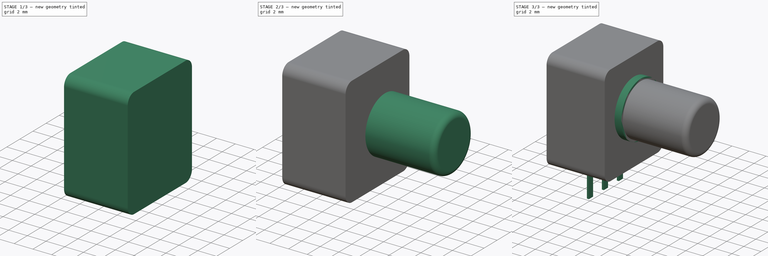
[diagram: build sequence overview — one tinted view per stage of 3, left to right]
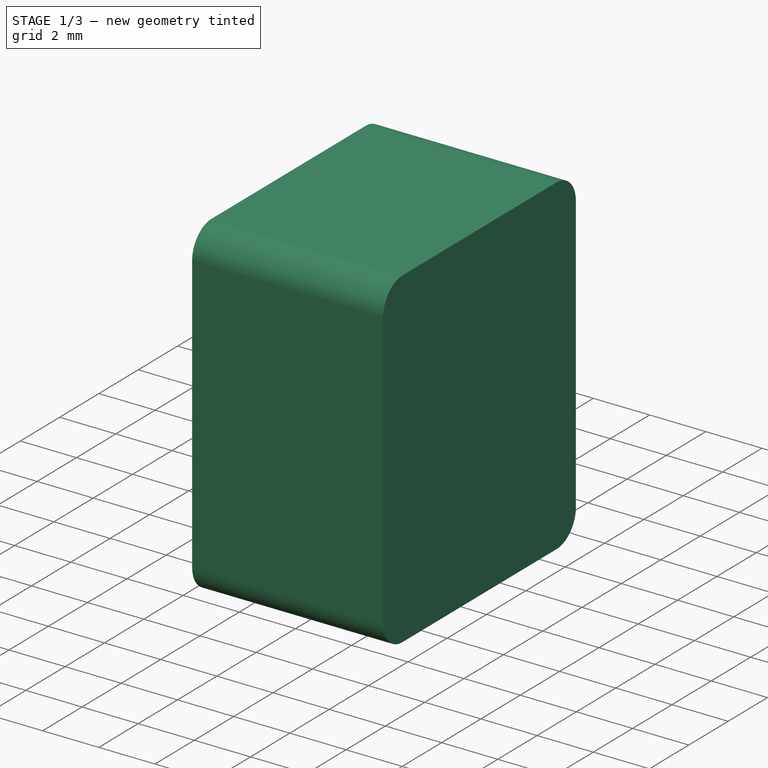
[diagram: stage 1 of 3 — iso view after this stage's code; geometry added in this stage tinted green]
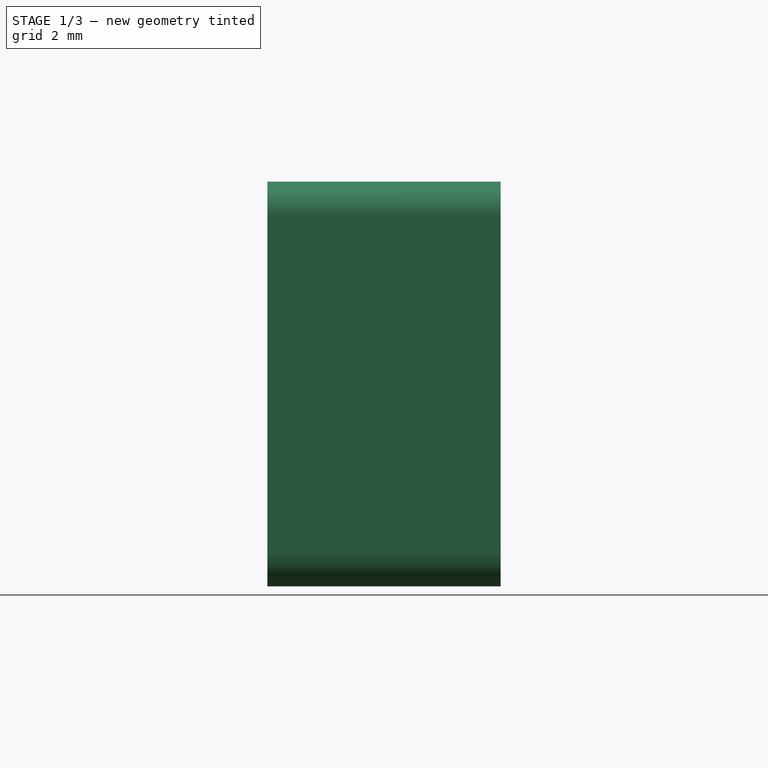
[diagram: stage 1 of 3 — front view after this stage's code; geometry added in this stage tinted green]
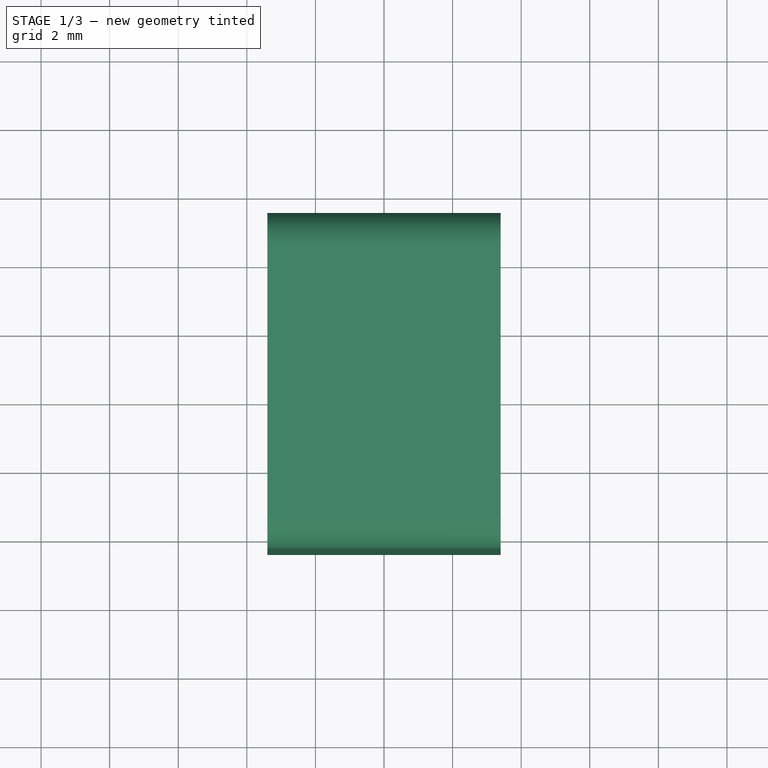
[diagram: stage 1 of 3 — top view after this stage's code; geometry added in this stage tinted green]
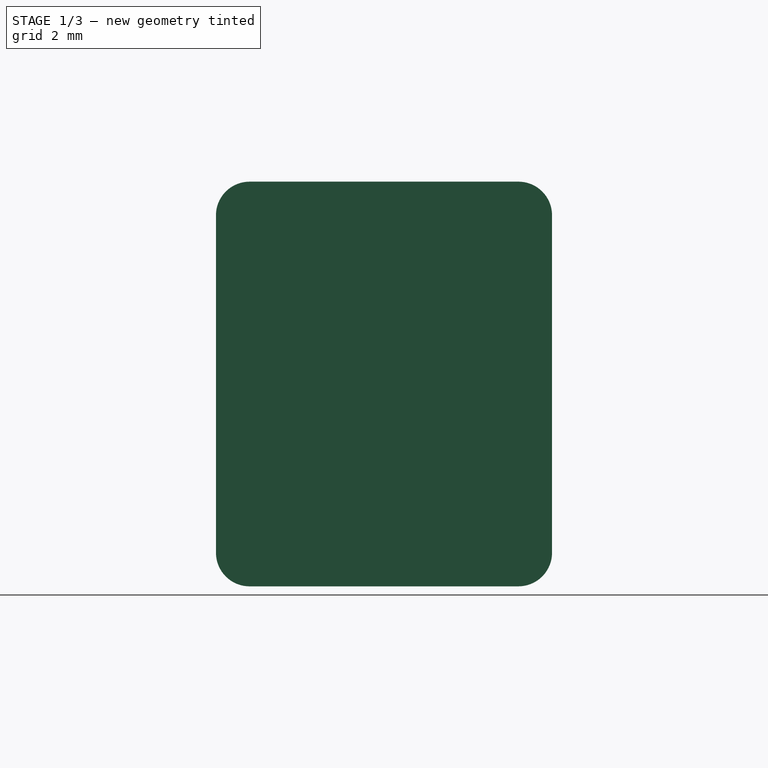
[diagram: stage 1 of 3 — right view after this stage's code; geometry added in this stage tinted green]
FCSTD DOCUMENT  (FreeCAD 0.16R6703 (Git))
Label: Potentiometer_Alps_RK09K_Vertical
License: All rights reserved
LicenseURL: http://en.wikipedia.org/wiki/All_rights_reserved
objects: Sketcher::SketchObject×4, PartDesign::Pad×4, PartDesign::Fillet×2, Spreadsheet::Sheet×1
note: 14 computed .brp shape members not serialized (recipe doc carries the construction recipe); baked Part::Feature solids carry a one-line shape summary decoded from their .brp

FEATURE [Spreadsheet::Sheet] Spreadsheet
  cells = A1=var lbody_fab = ; B1(lbody_fab)=-3.4; A2=var tbody_fab = ; B2(tbody_fab)=-7.4; A3=var wbody_fab = ; B3(wbody_fab)=6.8; A4=var hbody_fab = ; B4(hbody_fab)=9.800000000000001; A5=var lscrew_fab = ; B5(lscrew_fab)=3.4; A6=var tscrew_fab = ; B6(tscrew_fab)=-5.75; A7=var wscrew_fab = ; B7(wscrew_fab)=0.8; A8=var hscrew_fab = ; B8(hscrew_fab)=6.5; A9=var lshaft_fab = ; B9(lshaft_fab)=4.2; A10=var tshaft_fab = ; B10(tshaft_fab)=-5.5; A11=var wshaft_fab = ; B11(wshaft_fab)=7.4; A12=var hshaft_fab = ; B12(hshaft_fab)=6; A13=var rmx = ; B13(rmx)=2.5; A14=var rmy = ; B14(rmy)=2.5; A15=var padx = ; B15(padx)=0; A16=var pady = ; B16(pady)=5; A17=var d_wire = ; B17(d_wire)=0.7; A18=var height = ; B18(height)=12; A19=var screwzpos = ; B19(screwzpos)=6.5; A20=var mhpadx = ; B20(mhpadx)=-3.3; A21=var mhpady = ; B21(mhpady)=-2.5; A22=var mh_rmx = ; B22(mh_rmx)=0; A23=var mh_rmy = ; B23(mh_rmy)=10; A24=var offsetx = ; B24(offsetx)=0; A25=var offsety = ; B25(offsety)=-5
FEATURE [Sketcher::SketchObject] Sketch
  Placement = pos=(-3.4,0,0) rot=(0.57735,0.57735,0.57735;2.0944rad)
  expr: Constraints[10] = Spreadsheet.hbody_fab
  expr: Constraints[9] = Spreadsheet.height
  expr: Placement.Base.x = Spreadsheet.lbody_fab
  expr: Constraints[8] = Spreadsheet.tbody_fab
  sketch-geometry (4):
    g0: LineSegment StartX=7.4 StartY=12 StartZ=0 EndX=-2.4 EndY=12 EndZ=0
    g1: LineSegment StartX=-2.4 StartY=12 StartZ=0 EndX=-2.4 EndY=0.2 EndZ=0
    g2: LineSegment StartX=-2.4 StartY=0.2 StartZ=0 EndX=7.4 EndY=0.2 EndZ=0
    g3: LineSegment StartX=7.4 StartY=0.2 StartZ=0 EndX=7.4 EndY=12 EndZ=0
  constraints (12):
    c: Coincident(g0,g1)
    c: Coincident(g1,g2)
    c: Coincident(g2,g3)
    c: Coincident(g3,g0)
    c: Horizontal(g0)
    c: Horizontal(g2)
    c: Vertical(g1)
    c: Vertical(g3)
    c: DistanceX(g2,g-1) = -7.4
    c: DistanceY(g-1,g0) = 12
    c: DistanceX(g0,g0) = 9.8
    c: DistanceY(g-1,g1) = 0.2
FEATURE [PartDesign::Pad] Pad
  Length = 6.8
  Length2 = 100
  Placement = pos=(-3.4,0,0) rot=(0.57735,0.57735,0.57735;2.0944rad)
  Sketch = -> Sketch
  Type = 0
  expr: Length = abs(Spreadsheet.wbody_fab)
FEATURE [PartDesign::Fillet] Fillet001
  Base = -> Pad [Edge2,Edge1,Edge5,Edge8]
  Placement = pos=(-3.4,0,0) rot=(0.57735,0.57735,0.57735;2.0944rad)
  Radius = 0.98
  expr: Radius = Spreadsheet.hbody_fab * 0.1
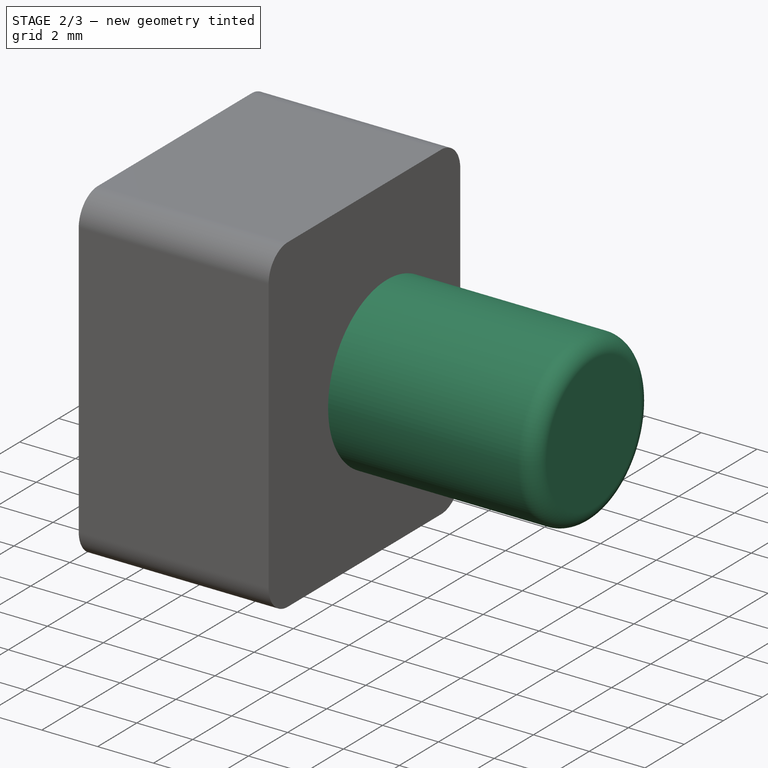
[diagram: stage 2 of 3 — iso view after this stage's code; geometry added in this stage tinted green]
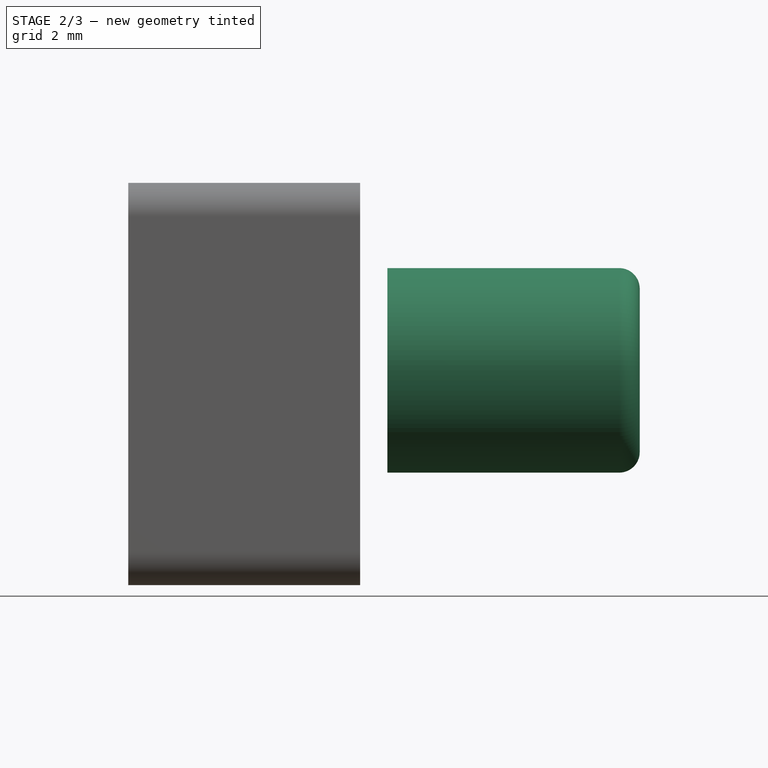
[diagram: stage 2 of 3 — front view after this stage's code; geometry added in this stage tinted green]
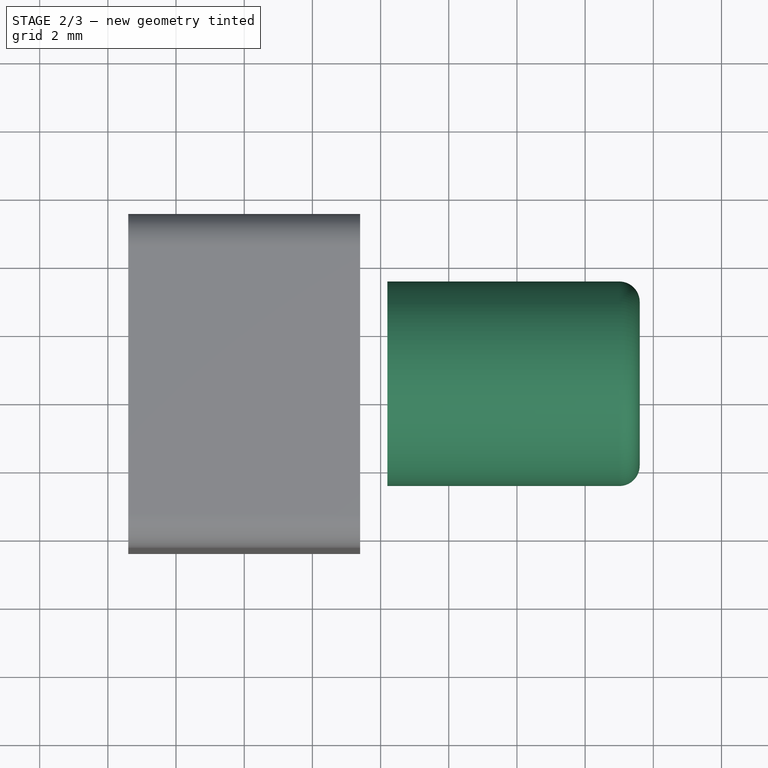
[diagram: stage 2 of 3 — top view after this stage's code; geometry added in this stage tinted green]
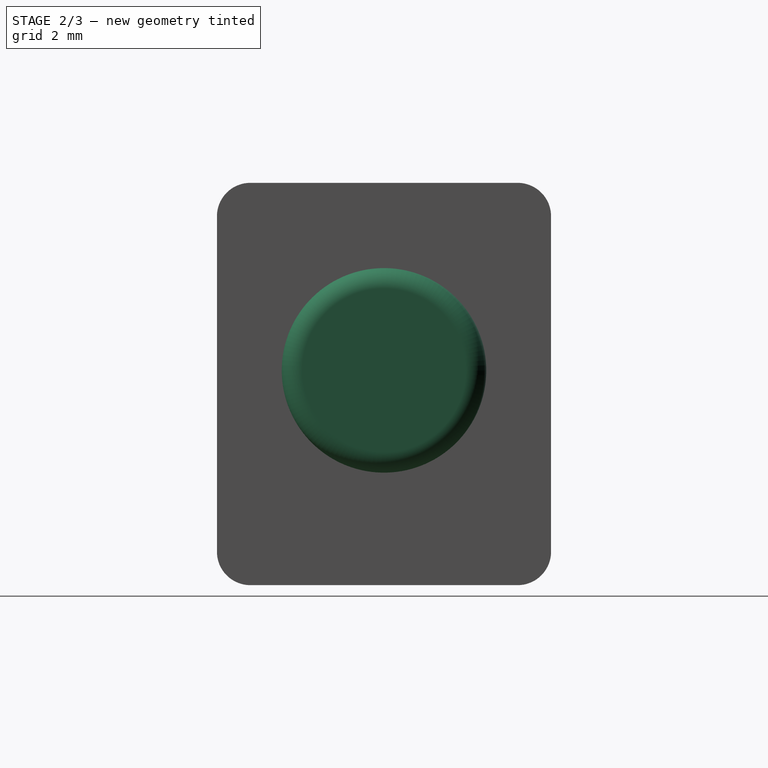
[diagram: stage 2 of 3 — right view after this stage's code; geometry added in this stage tinted green]
FEATURE [Sketcher::SketchObject] Sketch004
  Placement = pos=(4.2,0,0) rot=(0.57735,0.57735,0.57735;2.0944rad)
  expr: Placement.Base.x = Spreadsheet.lshaft_fab
  expr: Constraints[1] = Spreadsheet.screwzpos
  expr: Constraints[0] = Spreadsheet.hshaft_fab / 2
  expr: Constraints[2] = Spreadsheet.tbody_fab + Spreadsheet.hbody_fab / 2
  sketch-geometry (1):
    g0: Circle CenterX=2.5 CenterY=6.5 CenterZ=0 NormalX=0 NormalY=0 NormalZ=1 Radius=3
  constraints (3):
    c: Radius(g0) = 3
    c: DistanceY(g-1,g0) = 6.5
    c: DistanceX(g0,g-1) = -2.5
FEATURE [PartDesign::Pad] Pad003
  Length = 7.4
  Length2 = 100
  Placement = pos=(4.2,0,0) rot=(0.57735,0.57735,0.57735;2.0944rad)
  Sketch = -> Sketch004
  Type = 0
  expr: Length = Spreadsheet.wshaft_fab
FEATURE [PartDesign::Fillet] Fillet
  Base = -> Pad003 [Edge3]
  Placement = pos=(4.2,0,0) rot=(0.57735,0.57735,0.57735;2.0944rad)
  Radius = 0.6
  expr: Radius = Spreadsheet.hshaft_fab * 0.1
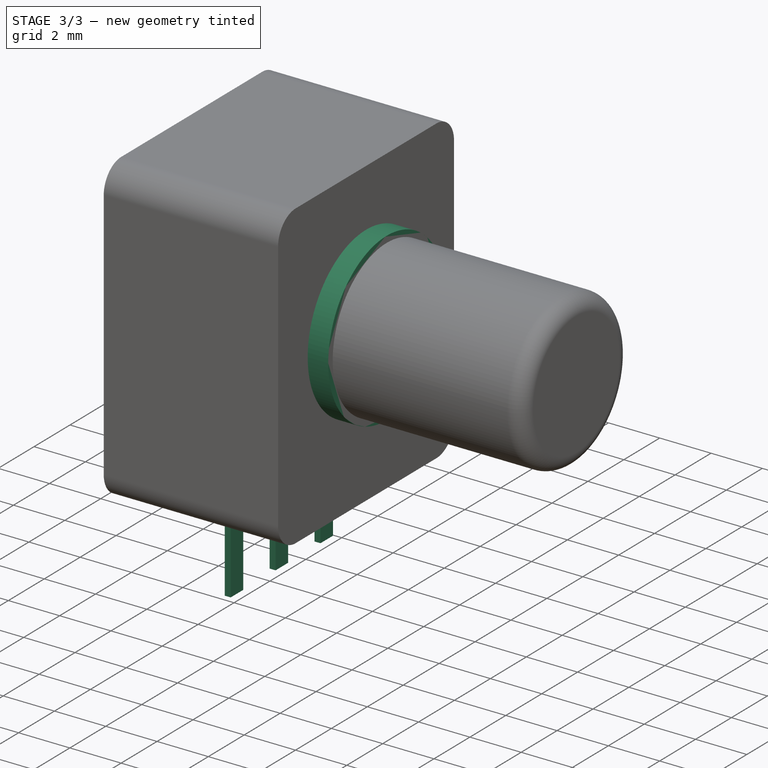
[diagram: stage 3 of 3 — iso view after this stage's code; geometry added in this stage tinted green]
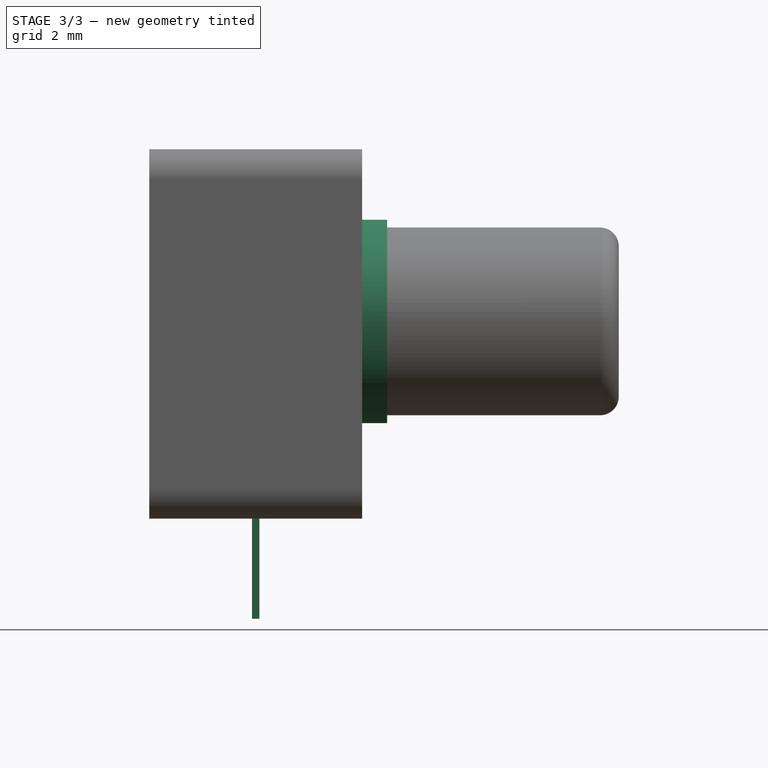
[diagram: stage 3 of 3 — front view after this stage's code; geometry added in this stage tinted green]
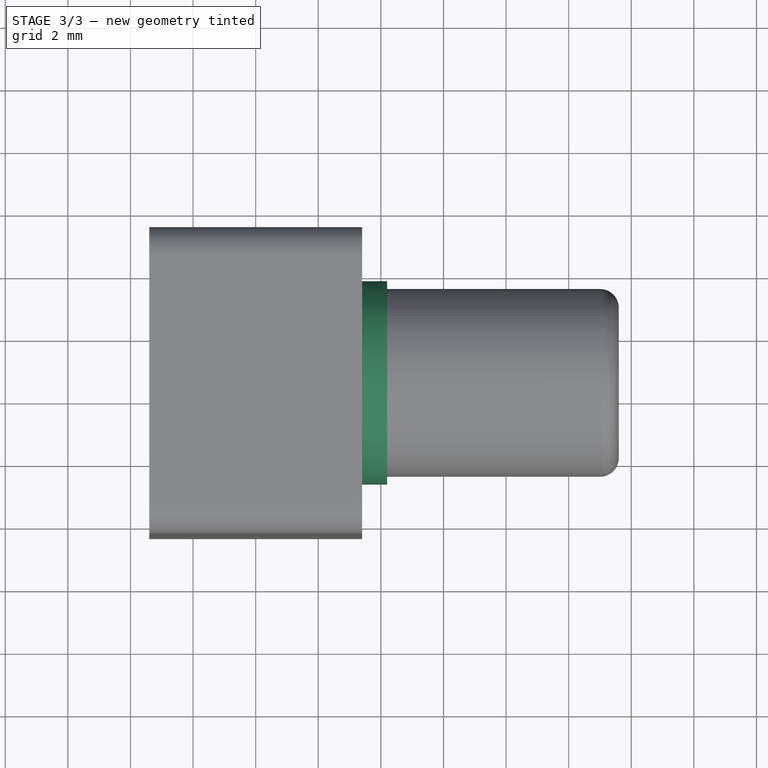
[diagram: stage 3 of 3 — top view after this stage's code; geometry added in this stage tinted green]
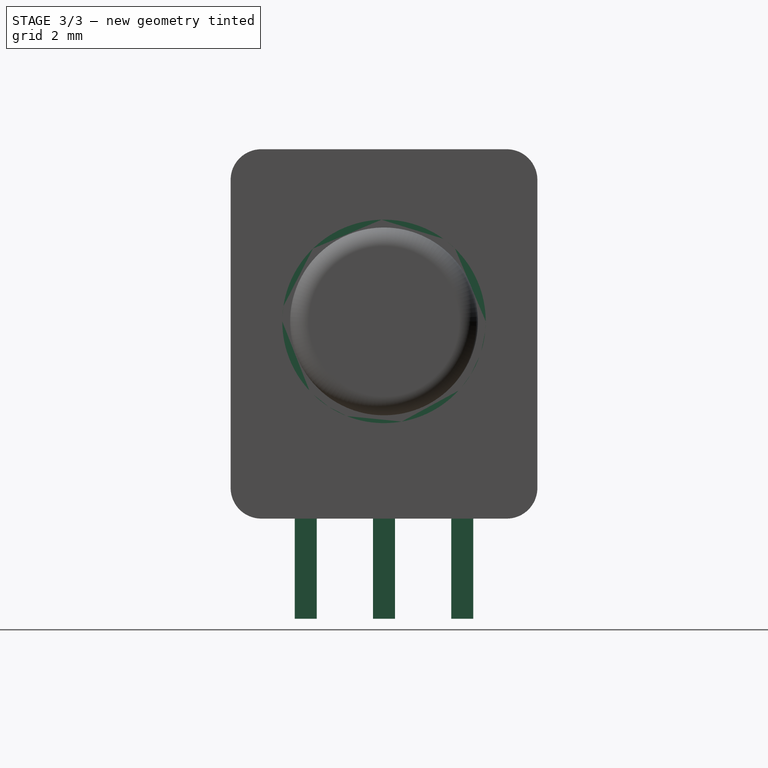
[diagram: stage 3 of 3 — right view after this stage's code; geometry added in this stage tinted green]
FEATURE [Sketcher::SketchObject] Sketch001
  Placement = pos=(4.2,0,0) rot=(0.57735,0.57735,0.57735;2.0944rad)
  expr: Placement.Base.x = Spreadsheet.lshaft_fab
  expr: Constraints[1] = Spreadsheet.screwzpos
  expr: Constraints[0] = Spreadsheet.hscrew_fab / 2
  expr: Constraints[2] = Spreadsheet.tbody_fab + Spreadsheet.hbody_fab / 2
  sketch-geometry (1):
    g0: Circle CenterX=2.5 CenterY=6.5 CenterZ=0 NormalX=0 NormalY=0 NormalZ=1 Radius=3.25
  constraints (3):
    c: Radius(g0) = 3.25
    c: DistanceY(g-1,g0) = 6.5
    c: DistanceX(g0,g-1) = -2.5
FEATURE [PartDesign::Pad] Pad001
  Length = 0.8
  Length2 = 100
  Placement = pos=(4.2,0,0) rot=(0.57735,0.57735,0.57735;2.0944rad)
  Reversed = true
  Sketch = -> Sketch001
  Type = 0
  expr: Length = Spreadsheet.wscrew_fab
FEATURE [Sketcher::SketchObject] Sketch003
  Placement = pos=(0,0,0) rot=(0,0,1;3.14159rad)
  expr: Constraints[23] = Spreadsheet.rmy
  expr: Constraints[22] = Spreadsheet.d_wire / 3
  expr: Constraints[35] = Spreadsheet.rmy * 2
  expr: Constraints[36] = Spreadsheet.rmy * 2
  expr: Constraints[24] = Spreadsheet.rmy
  expr: Constraints[8] = Spreadsheet.d_wire / 3
  expr: Constraints[11] = Spreadsheet.d_wire / 2
  expr: Constraints[10] = Spreadsheet.d_wire / 6
  expr: Constraints[9] = Spreadsheet.d_wire
  sketch-geometry (13):
    g0: LineSegment StartX=-0.116667 StartY=0.35 StartZ=0 EndX=0.116667 EndY=0.35 EndZ=0
    g1: LineSegment StartX=0.116667 StartY=0.35 StartZ=0 EndX=0.116667 EndY=-0.35 EndZ=0
    g2: LineSegment StartX=0.116667 StartY=-0.35 StartZ=0 EndX=-0.116667 EndY=-0.35 EndZ=0
    g3: LineSegment StartX=-0.116667 StartY=-0.35 StartZ=0 EndX=-0.116667 EndY=0.35 EndZ=0
    g4: GeomPoint [constr] X=0 Y=0 Z=0
    g5: LineSegment StartX=-0.116667 StartY=-2.15 StartZ=0 EndX=0.116667 EndY=-2.15 EndZ=0
    g6: LineSegment StartX=0.116667 StartY=-2.15 StartZ=0 EndX=0.116667 EndY=-2.85 EndZ=0
    g7: LineSegment StartX=0.116667 StartY=-2.85 StartZ=0 EndX=-0.116667 EndY=-2.85 EndZ=0
    g8: LineSegment StartX=-0.116667 StartY=-2.85 StartZ=0 EndX=-0.116667 EndY=-2.15 EndZ=0
    g9: LineSegment StartX=-0.116667 StartY=-4.65 StartZ=0 EndX=0.116667 EndY=-4.65 EndZ=0
    g10: LineSegment StartX=0.116667 StartY=-4.65 StartZ=0 EndX=0.116667 EndY=-5.35 EndZ=0
    g11: LineSegment StartX=0.116667 StartY=-5.35 StartZ=0 EndX=-0.116667 EndY=-5.35 EndZ=0
    g12: LineSegment StartX=-0.116667 StartY=-5.35 StartZ=0 EndX=-0.116667 EndY=-4.65 EndZ=0
  constraints (37):
    c: Coincident(g0,g1)
    c: Coincident(g1,g2)
    c: Coincident(g2,g3)
    c: Coincident(g3,g0)
    c: Horizontal(g0)
    c: Horizontal(g2)
    c: Vertical(g1)
    c: Vertical(g3)
    c: DistanceX(g0,g0) = 0.233333
    c: DistanceY(g3,g3) = 0.7
    c: DistanceX(g0,g4) = 0.116667
    c: DistanceY(g2,g4) = 0.35
    c: Coincident(g5,g6)
    c: Coincident(g6,g7)
    c: Coincident(g7,g8)
    c: Coincident(g8,g5)
    c: Horizontal(g5)
    c: Horizontal(g7)
    c: Vertical(g6)
    c: Vertical(g8)
    c: Coincident(g4,g-1)
    c: DistanceX(g2,g5) = 0
    c: DistanceX(g2,g5) = 0.233333
    c: DistanceY(g5,g0) = 2.5
    c: DistanceY(g7,g1) = 2.5
    c: Coincident(g9,g10)
    c: Coincident(g10,g11)
    c: Coincident(g11,g12)
    c: Coincident(g12,g9)
    c: Horizontal(g9)
    c: Horizontal(g11)
    c: Vertical(g10)
    c: Vertical(g12)
    c: DistanceX(g9,g2) = 0
    c: DistanceX(g1,g9) = 0
    c: DistanceY(g9,g0) = 5
    c: DistanceY(g11,g2) = 5
FEATURE [PartDesign::Pad] Pad002
  Length = 9
  Length2 = 3
  Placement = pos=(0,0,0) rot=(0,0,1;3.14159rad)
  Sketch = -> Sketch003
  Type = 4
  expr: Length = Spreadsheet.height * 0.75
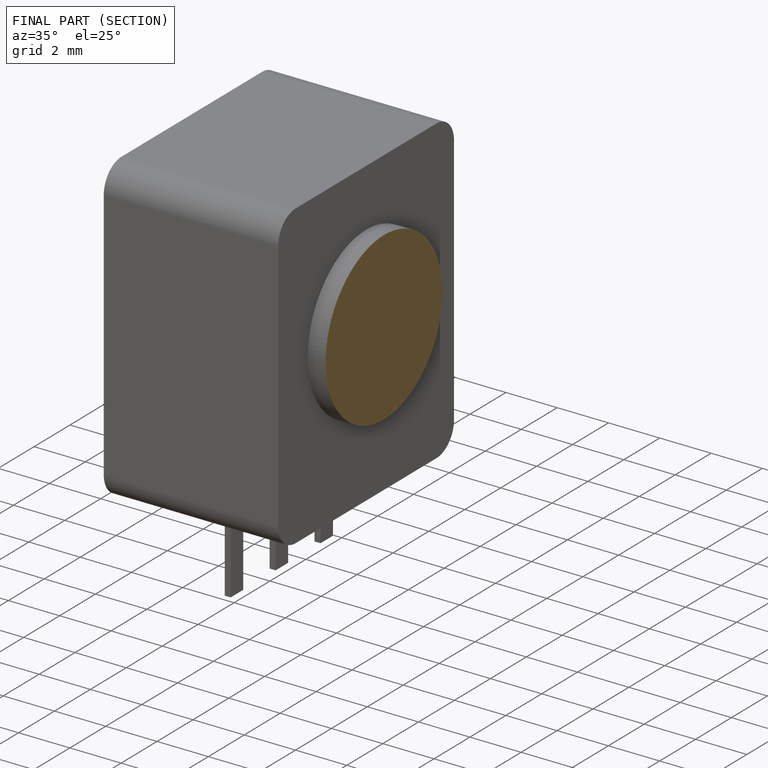
[diagram: finished part — half-section view (interior)]
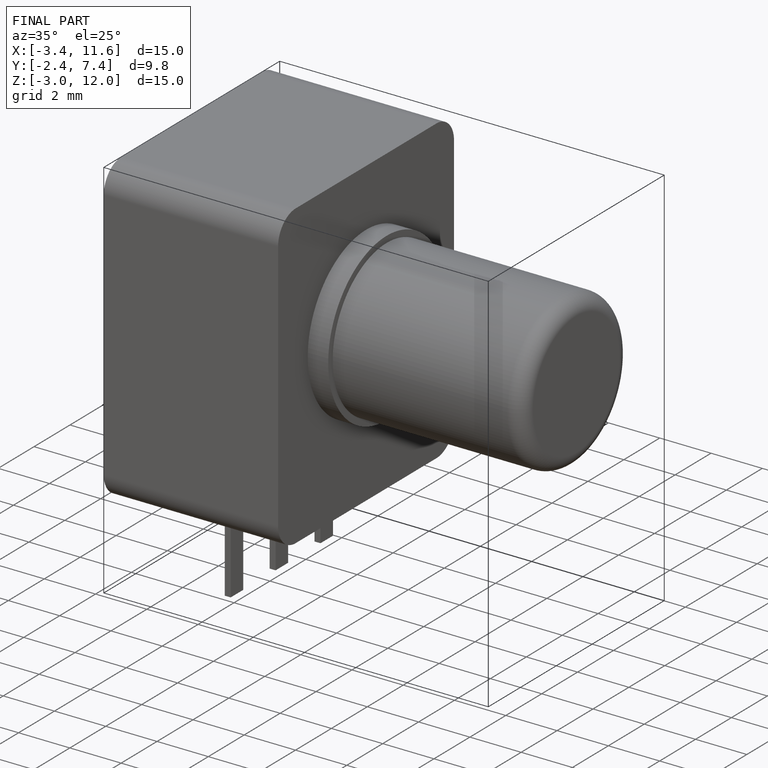
[diagram: finished part — iso view with bounding-box wireframe]
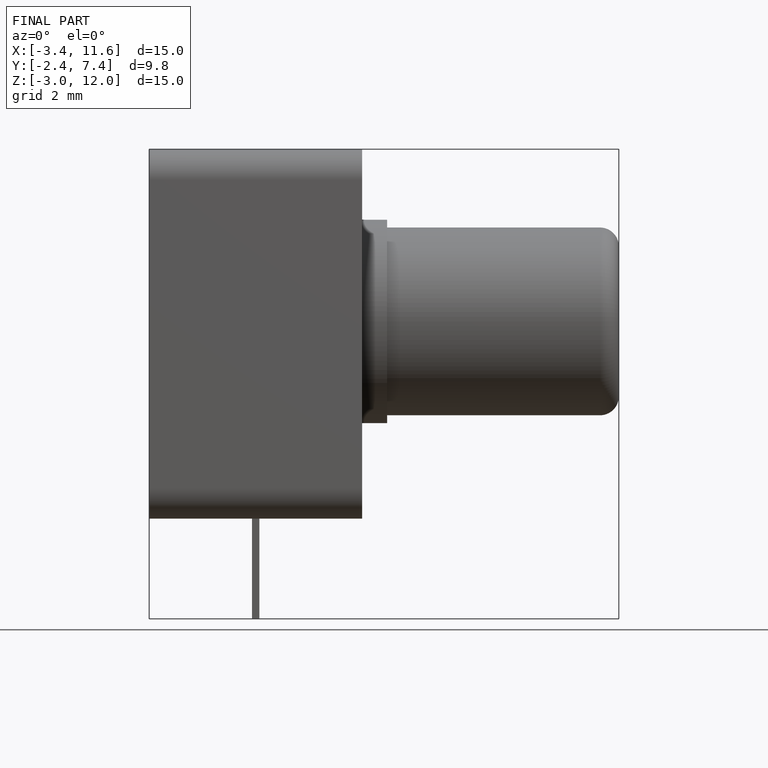
[diagram: finished part — front view with bounding-box wireframe]
